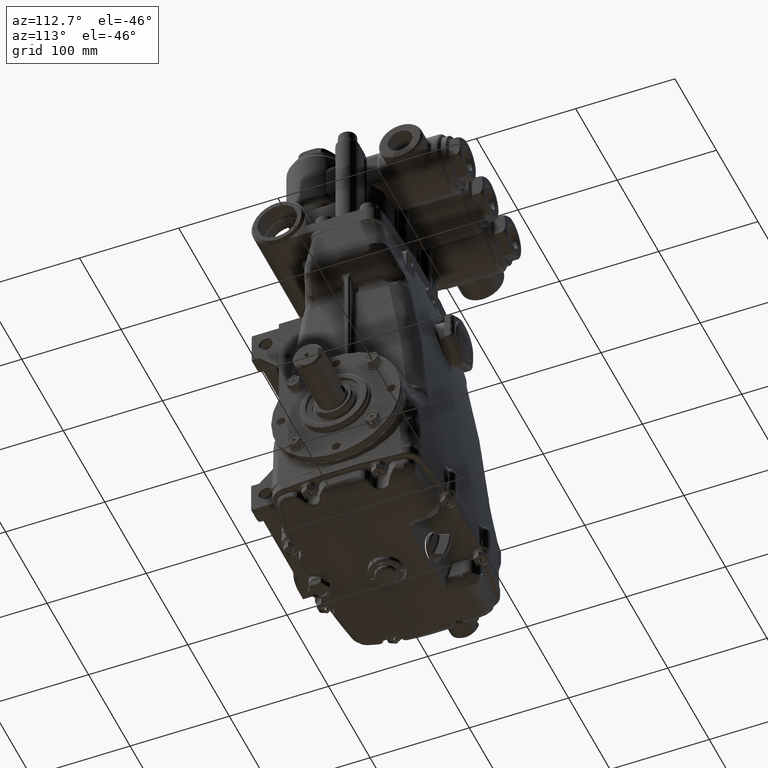
[diagram: clean part render]
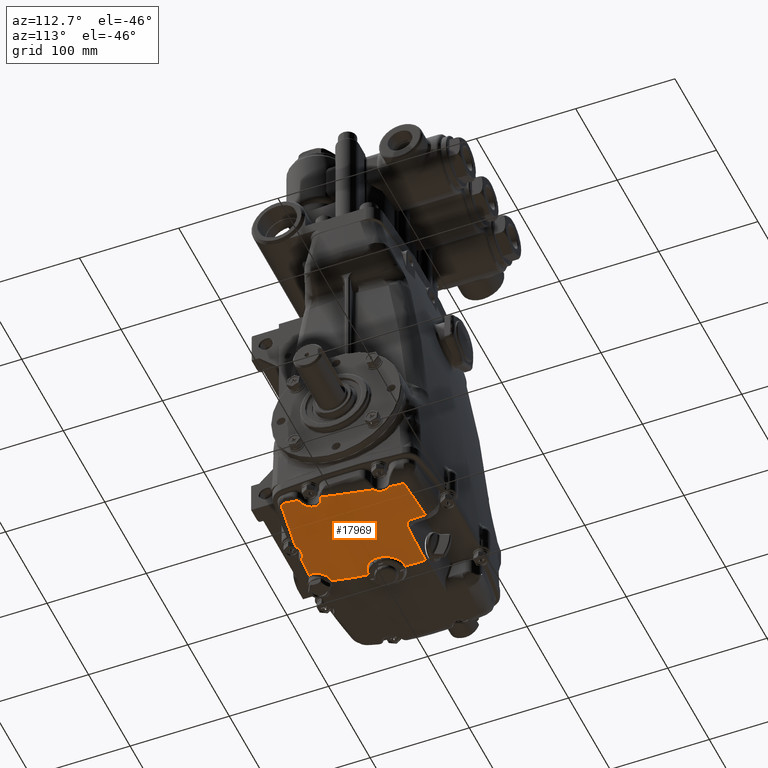
[diagram: same view with one face highlighted and labeled with its STEP entity id]
A machine part, auxiliary view. The second image highlights one B-rep face of the part: STEP entity #17969.
In plain terms, the highlighted toroidal blend (fillet) surface has major radius 100 mm and minor (blend) radius 400 mm.
Its self-contained STEP definition (entity closure, byte-faithful):
#58 = CARTESIAN_POINT ( 'NONE',  ( 1.245739980400027758, -2.855051657995907100, -3.631991507844216649 ) ) ;
#82 = EDGE_CURVE ( 'NONE', #63295, #20690, #53891, .T. ) ;
#226 = ORIENTED_EDGE ( 'NONE', *, *, #82409, .F. ) ;
#305 = CARTESIAN_POINT ( 'NONE',  ( 3.586567978287549696, 2.204579372434504414, -3.907619816998144646 ) ) ;
#919 = CARTESIAN_POINT ( 'NONE',  ( 2.003172396172104453E-16, 1.552323950496150795, -4.257337785501216665 ) ) ;
#1147 = CARTESIAN_POINT ( 'NONE',  ( 3.565604338808315621, -1.478484673195956001, -3.662868942396729111 ) ) ;
#1989 = ORIENTED_EDGE ( 'NONE', *, *, #18225, .F. ) ;
#2120 = CARTESIAN_POINT ( 'NONE',  ( 3.583763882361810094, -1.542539807167970123, -3.647216038498761304 ) ) ;
#2366 = CARTESIAN_POINT ( 'NONE',  ( 1.419107536603219089, 1.565547046440341150, -4.208037935621634418 ) ) ;
#2786 = CARTESIAN_POINT ( 'NONE',  ( 0.08835894796068850809, -2.173450601052985931, -3.847407205851667733 ) ) ;
#3397 = VERTEX_POINT ( 'NONE', #92720 ) ;
#3649 = CARTESIAN_POINT ( 'NONE',  ( 0.7333930364450117478, -3.713920644460025589E-15, -4.182122793431192420 ) ) ;
#3729 = DIRECTION ( 'NONE',  ( 0.000000000000000000, 0.000000000000000000, 1.000000000000000000 ) ) ;
#4188 = CARTESIAN_POINT ( 'NONE',  ( 3.626681482134549661, 1.140662726550395023, -3.918990675833525561 ) ) ;
#4249 = CARTESIAN_POINT ( 'NONE',  ( 0.7337424049238756574, 0.04862465115337850224, -4.186392271448601932 ) ) ;
#4735 = CARTESIAN_POINT ( 'NONE',  ( 0.4355964639879573164, 0.6136756290467074715, -4.233689838263579475 ) ) ;
#5072 = CARTESIAN_POINT ( 'NONE',  ( 3.115494169941632308, -2.681998754487130210, -3.467583127712007940 ) ) ;
#5131 = CARTESIAN_POINT ( 'NONE',  ( 0.4000620936014194773, -2.884814384941388532, -3.660086713610045450 ) ) ;
#5577 = CARTESIAN_POINT ( 'NONE',  ( 1.483325959519877557, -2.708548588730216533, -3.655441807153450906 ) ) ;
#5714 = CARTESIAN_POINT ( 'NONE',  ( 0.3317191125512596872, 0.6775665606348731940, -4.238776474263090677 ) ) ;
#5852 = CARTESIAN_POINT ( 'NONE',  ( 0.7048509219428266137, -0.1856555288772056833, -4.165563374280587539 ) ) ;
#6215 = CARTESIAN_POINT ( 'NONE',  ( 1.980190692304566902, 1.678499398813846799, -4.155740781809343254 ) ) ;
#6698 = CARTESIAN_POINT ( 'NONE',  ( 2.273859509442015536, 2.372132690393284893, -4.097843512510861430 ) ) ;
#6808 = CARTESIAN_POINT ( 'NONE',  ( 0.6152860796153137857, -0.3765557451413883983, -4.148033955126424921 ) ) ;
#7991 = TOROIDAL_SURFACE ( 'NONE', #76998, 3.937007874015747255, 15.74803149606299257 ) ;
#8064 = ORIENTED_EDGE ( 'NONE', *, *, #27104, .F. ) ;
#8820 = VERTEX_POINT ( 'NONE', #9002 ) ;
#8983 = CARTESIAN_POINT ( 'NONE',  ( 3.603287535501370709, -1.196200514404077708, -3.706475229060999244 ) ) ;
#9002 = CARTESIAN_POINT ( 'NONE',  ( 1.484937481530693995E-28, 0.7562672354312620637, -4.244969138634028916 ) ) ;
#9324 = AXIS2_PLACEMENT_3D ( 'NONE', #71025, #94086, #3729 ) ;
#9974 = CARTESIAN_POINT ( 'NONE',  ( 3.559363957123341748, -1.345812678849388044, -3.688516504562397103 ) ) ;
#10002 = VERTEX_POINT ( 'NONE', #95521 ) ;
#10189 = CARTESIAN_POINT ( 'NONE',  ( 2.008673690766307640, 1.931285806549176032, -4.148006241757110857 ) ) ;
#10445 = CARTESIAN_POINT ( 'NONE',  ( 3.634378383212812480, -1.640035068897425674, -3.618441625795617345 ) ) ;
#10976 = CARTESIAN_POINT ( 'NONE',  ( 1.568112543660154401, -2.697609937580156547, -3.651622421538722740 ) ) ;
#11561 = DIRECTION ( 'NONE',  ( 0.000000000000000000, -1.000000000000000000, 0.000000000000000000 ) ) ;
#11562 = CARTESIAN_POINT ( 'NONE',  ( 3.646664816487408256, 1.641861633727149217, -3.915456687385084233 ) ) ;
#11936 = ORIENTED_EDGE ( 'NONE', *, *, #84684, .F. ) ;
#12066 = ORIENTED_EDGE ( 'NONE', *, *, #95650, .F. ) ;
#12095 = CARTESIAN_POINT ( 'NONE',  ( 3.621571924099792561, 1.860832538617128717, -3.915574858415211690 ) ) ;
#12112 = CARTESIAN_POINT ( 'NONE',  ( 0.4925692811619593603, 0.5671706834012724130, -4.229954282807118382 ) ) ;
#12457 = CARTESIAN_POINT ( 'NONE',  ( 1.610741714477412989, -2.698428200343477634, -3.647849478386491651 ) ) ;
#12484 = CARTESIAN_POINT ( 'NONE',  ( 0.4379969648223513978, -2.460565197906707358, -3.772899590880935516 ) ) ;
#12755 = CARTESIAN_POINT ( 'NONE',  ( 8.831981099300206732E-29, -0.7094424206646805509, -4.116319017392696011 ) ) ;
#12987 = CARTESIAN_POINT ( 'NONE',  ( 0.4377237971306701114, -2.814335734729317196, -3.679065092924926894 ) ) ;
#13098 = CARTESIAN_POINT ( 'NONE',  ( 0.4550403399699287088, 0.5988651506360019861, -4.232503482409145867 ) ) ;
#13231 = CARTESIAN_POINT ( 'NONE',  ( 0.6279044653457337422, -0.3565023860598889316, -4.149897298541354473 ) ) ;
#13502 = CARTESIAN_POINT ( 'NONE',  ( 1.876542483643144577, -2.812870495884016275, -3.592079507783254577 ) ) ;
#13582 = CARTESIAN_POINT ( 'NONE',  ( 0.5920326208318058558, 0.4591306673311352227, -4.221176041747254359 ) ) ;
#13887 = B_SPLINE_CURVE_WITH_KNOTS ( 'NONE', 3,
 ( #50771, #43388, #96402, #50281 ),
 .UNSPECIFIED., .F., .F.,
 ( 4, 4 ),
 ( 0.000000000000000000, 0.1184049980374858035 ),
 .UNSPECIFIED. ) ;
#14305 = ORIENTED_EDGE ( 'NONE', *, *, #48878, .F. ) ;
#15495 = CARTESIAN_POINT ( 'NONE',  ( 0.02474760634068609230, 0.7562672354312613976, -4.244969138634027139 ) ) ;
#16204 = B_SPLINE_CURVE_WITH_KNOTS ( 'NONE', 3,
 ( #29973, #75650, #59938, #82527 ),
 .UNSPECIFIED., .F., .F.,
 ( 4, 4 ),
 ( 6.049187461416408140E-17, 0.0003509764754748541729 ),
 .UNSPECIFIED. ) ;
#16257 = VERTEX_POINT ( 'NONE', #27518 ) ;
#16732 = CARTESIAN_POINT ( 'NONE',  ( 3.872407700373652339, -0.9735357559509230096, -3.690100359438702515 ) ) ;
#16779 = CARTESIAN_POINT ( 'NONE',  ( 3.863625718058384617, -1.809906788860893290, -3.538215173066398211 ) ) ;
#17026 = VERTEX_POINT ( 'NONE', #13502 ) ;
#17114 = CARTESIAN_POINT ( 'NONE',  ( 0.5681572246669033266, 1.553977983604128976, -4.251171031928551614 ) ) ;
#17560 = CARTESIAN_POINT ( 'NONE',  ( 0.4600057126204847302, -2.738354504905432751, -3.699399859044935734 ) ) ;
#17796 = CARTESIAN_POINT ( 'NONE',  ( 3.770567827148264328, -2.578838951199222684, -3.373077672788578951 ) ) ;
#17816 = B_SPLINE_CURVE_WITH_KNOTS ( 'NONE', 3,
 ( #42898, #57639, #79745, #87116, #56670, #78781, #35077, #5577, #19839, #65016, #50262, #10976, #49777, #12457, #85661, #27695, #40934, #18859, #87610, #20321, #70916, #63533 ),
 .UNSPECIFIED., .F., .F.,
 ( 4, 2, 2, 2, 2, 2, 2, 2, 2, 2, 4 ),
 ( 0.000000000000000000, 0.002171790190448051258, 0.004343580380896102516, 0.006515370571344154642, 0.007601265666568180271, 0.008687160761792205033, 0.009773055857016231529, 0.01085895095224025629, 0.01303074114268829367, 0.01520253133313632932, 0.01737432152358436496 ),
 .UNSPECIFIED. ) ;
#17839 = CARTESIAN_POINT ( 'NONE',  ( 3.561781319896857312, -1.456787230011171719, -3.667668395193122155 ) ) ;
#17969 = ADVANCED_FACE ( 'NONE', ( #34660 ), #7991, .T. ) ;
#18060 = CARTESIAN_POINT ( 'NONE',  ( 2.008661041545683812, 2.395021426171620060, -4.123632080681848500 ) ) ;
#18082 = EDGE_CURVE ( 'NONE', #18400, #17026, #82939, .T. ) ;
#18225 = EDGE_CURVE ( 'NONE', #17026, #80629, #22072, .T. ) ;
#18400 = VERTEX_POINT ( 'NONE', #89492 ) ;
#18491 = CARTESIAN_POINT ( 'NONE',  ( 1.245739980400027758, -2.855051657995907100, -3.631991507844216649 ) ) ;
#18618 = ORIENTED_EDGE ( 'NONE', *, *, #51666, .F. ) ;
#18772 = CARTESIAN_POINT ( 'NONE',  ( 3.809013923838506788, -2.558371276684589191, -3.370762654423174798 ) ) ;
#18830 = CARTESIAN_POINT ( 'NONE',  ( 2.187762165971132156, -2.786261965328659329, -3.566853002154207530 ) ) ;
#18859 = CARTESIAN_POINT ( 'NONE',  ( 1.747962851359756931, -2.730000400886859246, -3.627202804908173039 ) ) ;
#18949 = CARTESIAN_POINT ( 'NONE',  ( 3.629847575948220939, 1.619798204031977829, -3.918972616303384449 ) ) ;
#19435 = DIRECTION ( 'NONE',  ( 0.000000000000000000, 0.000000000000000000, -1.000000000000000000 ) ) ;
#19498 = CARTESIAN_POINT ( 'NONE',  ( 0.5618373180732132433, 0.4973528470300818682, -4.224299276946291926 ) ) ;
#19811 = CARTESIAN_POINT ( 'NONE',  ( 2.497898342742233435, -2.755055460498212927, -3.537201936879522890 ) ) ;
#19839 = CARTESIAN_POINT ( 'NONE',  ( 1.497473787614830742, -2.705531607547116302, -3.655153973710840276 ) ) ;
#19870 = CARTESIAN_POINT ( 'NONE',  ( 0.4005101008080272917, -2.387092339918871708, -3.792106912017034759 ) ) ;
#19967 = CARTESIAN_POINT ( 'NONE',  ( 3.633875990936608513, 1.751279334968094847, -3.916149617121006177 ) ) ;
#20126 = CARTESIAN_POINT ( 'NONE',  ( 0.1632070964908627630, -0.6914647128491893113, -4.118069878825973085 ) ) ;
#20321 = CARTESIAN_POINT ( 'NONE',  ( 1.822204368419263698, -2.769635333946053102, -3.609373799083536394 ) ) ;
#20354 = B_SPLINE_CURVE_WITH_KNOTS ( 'NONE', 3,
 ( #69657, #83448, #17114, #31855, #2366, #30889 ),
 .UNSPECIFIED., .F., .F.,
 ( 4, 2, 4 ),
 ( 0.04329125418444283724, 0.06493589394034193774, 0.08658053369624105211 ),
 .UNSPECIFIED. ) ;
#20469 = CARTESIAN_POINT ( 'NONE',  ( 0.7275429721425328289, 0.1218267962290368461, -4.192755238023530673 ) ) ;
#20617 = CARTESIAN_POINT ( 'NONE',  ( 0.4000620936014194773, -2.884814384941388532, -3.660086713610045450 ) ) ;
#20690 = VERTEX_POINT ( 'NONE', #58 ) ;
#20849 = CARTESIAN_POINT ( 'NONE',  ( 0.3185956466287307443, -2.290677831665465458, -3.817156890625955867 ) ) ;
#20883 = CARTESIAN_POINT ( 'NONE',  ( 3.647611407161935659, -1.658154061950620539, -3.612271883846879472 ) ) ;
#22072 = B_SPLINE_CURVE_WITH_KNOTS ( 'NONE', 3,
 ( #40896, #63504, #18830, #19811, #94935, #5072, #28146, #26203 ),
 .UNSPECIFIED., .F., .F.,
 ( 4, 2, 2, 4 ),
 ( 0.04773650512796401291, 0.05965669836104948304, 0.07157689159413496705, 0.09541727806030594894 ),
 .UNSPECIFIED. ) ;
#22353 = CARTESIAN_POINT ( 'NONE',  ( 3.931430012626015102, -1.867895298749763677, -3.511778674847698234 ) ) ;
#22791 = CARTESIAN_POINT ( 'NONE',  ( 3.691987149479054597, -1.707457738661033009, -3.593694390311593434 ) ) ;
#22874 = CARTESIAN_POINT ( 'NONE',  ( 0.04955429726530854312, 0.7550083279279999893, -4.244870735151792474 ) ) ;
#22902 = CARTESIAN_POINT ( 'NONE',  ( 3.064611472474148446, 2.281165435530092989, -3.994878408164534100 ) ) ;
#22930 = EDGE_CURVE ( 'NONE', #23899, #63295, #72949, .T. ) ;
#23763 = CARTESIAN_POINT ( 'NONE',  ( 3.872407700373652339, -0.9735357559509230096, -3.690100359438702515 ) ) ;
#23899 = VERTEX_POINT ( 'NONE', #63015 ) ;
#24671 = CARTESIAN_POINT ( 'NONE',  ( 3.886738178188245740, -2.454627830697037716, -3.381967238802731313 ) ) ;
#24695 = CARTESIAN_POINT ( 'NONE',  ( 3.720859036953444665, 1.037867726598609819, -3.899014983528266587 ) ) ;
#24715 = CARTESIAN_POINT ( 'NONE',  ( 3.714501964040828330, -1.056333570673942734, -3.708340763827934872 ) ) ;
#25114 = CARTESIAN_POINT ( 'NONE',  ( 3.823806146129085537, -1.793153042647171569, -3.549776368419175654 ) ) ;
#25154 = CARTESIAN_POINT ( 'NONE',  ( 3.868879502842162310, -2.494329789588826785, -3.375363340974605109 ) ) ;
#25414 = CARTESIAN_POINT ( 'NONE',  ( 0.4210627623333653147, -2.850939970837875759, -3.669224017197981524 ) ) ;
#26203 = CARTESIAN_POINT ( 'NONE',  ( 3.728132651066273340, -2.589356219755102551, -3.378722439390763110 ) ) ;
#26847 = ORIENTED_EDGE ( 'NONE', *, *, #34450, .F. ) ;
#27104 = EDGE_CURVE ( 'NONE', #3397, #48297, #49724, .T. ) ;
#27504 = CARTESIAN_POINT ( 'NONE',  ( 0.1859544217699561075, -0.6859052078635387018, -4.118610563163558780 ) ) ;
#27518 = CARTESIAN_POINT ( 'NONE',  ( 1.702059072287212205, 1.572153632602977247, -4.183406504010035221 ) ) ;
#27695 = CARTESIAN_POINT ( 'NONE',  ( 1.667393450367502972, -2.705358816505083031, -3.641120838932098369 ) ) ;
#27780 = CARTESIAN_POINT ( 'NONE',  ( 3.560620847076446882, 1.436730850196259235, -3.933364998822224567 ) ) ;
#28146 = CARTESIAN_POINT ( 'NONE',  ( 3.422575592899133934, -2.638662439618070898, -3.426138711723588859 ) ) ;
#28201 = CARTESIAN_POINT ( 'NONE',  ( 0.04460092797394513836, -2.167208029091822308, -3.849010079505816417 ) ) ;
#28241 = CARTESIAN_POINT ( 'NONE',  ( 3.823806146129085537, -1.793153042647171569, -3.549776368419175654 ) ) ;
#28788 = CARTESIAN_POINT ( 'NONE',  ( 3.646664816487408256, 1.641861633727149217, -3.915456687385084233 ) ) ;
#28800 = CARTESIAN_POINT ( 'NONE',  ( 0.2412942400473458149, 0.7172718552742751719, -4.241912704648060917 ) ) ;
#28826 = CARTESIAN_POINT ( 'NONE',  ( 1.890906886572283119, 1.623384772786901076, -4.165469755234848748 ) ) ;
#28934 = CARTESIAN_POINT ( 'NONE',  ( 0.4939085513583030829, -0.5190591162143017856, -4.134639758097313766 ) ) ;
#29973 = CARTESIAN_POINT ( 'NONE',  ( 1.245739980400027758, -2.855051657995907100, -3.631991507844216649 ) ) ;
#30270 = CARTESIAN_POINT ( 'NONE',  ( 3.326332494310697552, 2.245008663854715980, -3.953787052236676924 ) ) ;
#30347 = CARTESIAN_POINT ( 'NONE',  ( 1.254974850051161051, -2.845013873635469093, -3.634204289657825271 ) ) ;
#30889 = CARTESIAN_POINT ( 'NONE',  ( 1.702059072287212205, 1.572153632602977247, -4.183406504010035221 ) ) ;
#31087 = VERTEX_POINT ( 'NONE', #77829 ) ;
#31106 = CARTESIAN_POINT ( 'NONE',  ( 3.577811901941634343, -1.258506167236604467, -3.700535329728496858 ) ) ;
#31125 = CARTESIAN_POINT ( 'NONE',  ( 1.869383322616463117, -2.807057063106219719, -3.594405301457350710 ) ) ;
#31855 = CARTESIAN_POINT ( 'NONE',  ( 1.135736795874097593, 1.560590851204711749, -4.226516187002955505 ) ) ;
#32763 = CARTESIAN_POINT ( 'NONE',  ( 0.4669302591580821171, -2.698995474909019254, -3.709897107516295200 ) ) ;
#33145 = VERTEX_POINT ( 'NONE', #61076 ) ;
#33174 = ORIENTED_EDGE ( 'NONE', *, *, #66213, .F. ) ;
#33231 = CARTESIAN_POINT ( 'NONE',  ( 0.6823706657701417155, -2.879987158023668670, -3.655534384585330532 ) ) ;
#34450 = EDGE_CURVE ( 'NONE', #90706, #45231, #47485, .T. ) ;
#34660 = FACE_OUTER_BOUND ( 'NONE', #50115, .T. ) ;
#34710 = CARTESIAN_POINT ( 'NONE',  ( 3.594173914756466193, 2.126482030281483304, -3.910278122376084742 ) ) ;
#35077 = CARTESIAN_POINT ( 'NONE',  ( 1.441755554501353176, -2.719601105694878118, -3.655645177967421500 ) ) ;
#35154 = CARTESIAN_POINT ( 'NONE',  ( 3.699026507002487030, 1.055336998217146105, -3.903626357330575836 ) ) ;
#35358 = CARTESIAN_POINT ( 'NONE',  ( 0.4199811270316639034, -0.5779753334101679352, -4.129022176410383160 ) ) ;
#35687 = CARTESIAN_POINT ( 'NONE',  ( 0.3953793295701341637, 0.6412677182113569740, -4.235893192269966079 ) ) ;
#35712 = CARTESIAN_POINT ( 'NONE',  ( 1.962851284236456051, 1.666562271230724201, -4.157698992238735514 ) ) ;
#36600 = CARTESIAN_POINT ( 'NONE',  ( 3.900674149539015367, -1.835217963458702473, -3.525240212989143807 ) ) ;
#36632 = CARTESIAN_POINT ( 'NONE',  ( 3.586567978287549696, 2.204579372434504414, -3.907619816998144646 ) ) ;
#36779 = CARTESIAN_POINT ( 'NONE',  ( 0.7326446444890953869, -0.02335393701120306101, -4.180066603431411565 ) ) ;
#37592 = CARTESIAN_POINT ( 'NONE',  ( 0.09858804508712384895, 0.7500397513758898516, -4.244482005487065557 ) ) ;
#38944 = CARTESIAN_POINT ( 'NONE',  ( 3.611139618381015381, -1.602517365950183903, -3.630323230228168274 ) ) ;
#39443 = CARTESIAN_POINT ( 'NONE',  ( 3.666267401420375105, -1.103058151253732078, -3.710059555641522344 ) ) ;
#39557 = CARTESIAN_POINT ( 'NONE',  ( 1.730522399616355012, 1.572818217879113023, -4.180928721025569672 ) ) ;
#39880 = CARTESIAN_POINT ( 'NONE',  ( 3.826861050663636021, -2.544671697334583982, -3.370761410914473455 ) ) ;
#39928 = CARTESIAN_POINT ( 'NONE',  ( 3.571462184105320237, -1.280234262307147652, -3.697921987226300722 ) ) ;
#39981 = EDGE_CURVE ( 'NONE', #48973, #78372, #63033, .T. ) ;
#40263 = CARTESIAN_POINT ( 'NONE',  ( 3.922866597083941365, -0.9542416793586864232, -3.682798854708527081 ) ) ;
#40896 = CARTESIAN_POINT ( 'NONE',  ( 1.876542483643144577, -2.812870495884016275, -3.592079507783254577 ) ) ;
#40934 = CARTESIAN_POINT ( 'NONE',  ( 1.694780199666231502, -2.711852277465110816, -3.636945158084419205 ) ) ;
#41021 = CARTESIAN_POINT ( 'NONE',  ( 3.589949382978762316, 1.545143591340030431, -3.927302923417596681 ) ) ;
#41623 = CARTESIAN_POINT ( 'NONE',  ( 0.000000000000000000, 1.398871258882495416, 11.48994605243186840 ) ) ;
#42038 = CARTESIAN_POINT ( 'NONE',  ( 3.873885938955531127, -0.2571276511865417946, -3.788110459876599556 ) ) ;
#42084 = CARTESIAN_POINT ( 'NONE',  ( 8.831981099300206732E-29, -0.7094424206646805509, -4.116319017392696011 ) ) ;
#42431 = CARTESIAN_POINT ( 'NONE',  ( 0.2680847069381476211, -2.250353468461625539, -3.827589196319168163 ) ) ;
#42704 = CARTESIAN_POINT ( 'NONE',  ( 0.3610197065516833614, -0.6163141624680221753, -4.125345315309562721 ) ) ;
#42898 = CARTESIAN_POINT ( 'NONE',  ( 1.254974850051161051, -2.845013873635469093, -3.634204289657825271 ) ) ;
#43037 = CARTESIAN_POINT ( 'NONE',  ( 0.3746060256561361546, 0.6540492600090591635, -4.236910178975861641 ) ) ;
#43172 = CARTESIAN_POINT ( 'NONE',  ( 0.4390567035582108590, -0.5642349978772231989, -4.130336662271744785 ) ) ;
#43388 = CARTESIAN_POINT ( 'NONE',  ( 3.912881244489314625, -2.231596983742285545, -3.433420632372893966 ) ) ;
#44123 = CARTESIAN_POINT ( 'NONE',  ( 0.5749609795178111105, -0.4343037677226513349, -4.142646523513473511 ) ) ;
#45231 = VERTEX_POINT ( 'NONE', #63958 ) ;
#45458 = CARTESIAN_POINT ( 'NONE',  ( 2.003069288343956700, 1.694939550856162658, -4.153111690900376907 ) ) ;
#45483 = B_SPLINE_CURVE_WITH_KNOTS ( 'NONE', 3,
 ( #28788, #19967, #12095, #88231, #34710, #36632 ),
 .UNSPECIFIED., .F., .F.,
 ( 4, 2, 4 ),
 ( 0.8787052562053232485, 0.9496522024094325998, 1.000000000000000000 ),
 .UNSPECIFIED. ) ;
#45943 = CARTESIAN_POINT ( 'NONE',  ( 1.702059072287212205, 1.572153632602977247, -4.183406504010035221 ) ) ;
#46175 = ORIENTED_EDGE ( 'NONE', *, *, #96142, .F. ) ;
#46800 = CARTESIAN_POINT ( 'NONE',  ( 1.876542483643144577, -2.812870495884016275, -3.592079507783254577 ) ) ;
#47309 = CARTESIAN_POINT ( 'NONE',  ( 1.865905063327786717, -2.804038209525553160, -3.595586502535783158 ) ) ;
#47484 = CARTESIAN_POINT ( 'NONE',  ( 0.2857441941307072852, -2.263187779526286469, -3.824272266622115168 ) ) ;
#47485 = B_SPLINE_CURVE_WITH_KNOTS ( 'NONE', 3,
 ( #22353, #36600, #16779, #25114 ),
 .UNSPECIFIED., .F., .F.,
 ( 4, 4 ),
 ( 0.000000000000000000, 1.000000000000000000 ),
 .UNSPECIFIED. ) ;
#47763 = CARTESIAN_POINT ( 'NONE',  ( 3.557432984014971655, -1.412825169511775281, -3.676659020318942428 ) ) ;
#48192 = ORIENTED_EDGE ( 'NONE', *, *, #71325, .F. ) ;
#48297 = VERTEX_POINT ( 'NONE', #24695 ) ;
#48377 = CARTESIAN_POINT ( 'NONE',  ( 3.571077422130410461, 1.269157955343095612, -3.930922902736151414 ) ) ;
#48878 = EDGE_CURVE ( 'NONE', #10002, #81525, #65241, .T. ) ;
#48885 = CARTESIAN_POINT ( 'NONE',  ( 3.642605987153234359, 1.117742113554474503, -3.915597871831394183 ) ) ;
#48934 = CARTESIAN_POINT ( 'NONE',  ( 3.905435254941755918, -0.6056825736036506314, -3.740149926762978527 ) ) ;
#48973 = VERTEX_POINT ( 'NONE', #42084 ) ;
#49537 = ORIENTED_EDGE ( 'NONE', *, *, #18082, .F. ) ;
#49724 = B_SPLINE_CURVE_WITH_KNOTS ( 'NONE', 3,
 ( #86277, #48934, #42038, #64153, #94112, #65156 ),
 .UNSPECIFIED., .F., .F.,
 ( 4, 2, 4 ),
 ( 0.3162942192141539599, 0.5426584013768196435, 0.7479460576468662802 ),
 .UNSPECIFIED. ) ;
#49777 = CARTESIAN_POINT ( 'NONE',  ( 1.582301698735254281, -2.697416655977635358, -3.650503169443640061 ) ) ;
#49804 = CARTESIAN_POINT ( 'NONE',  ( 0.3763480170513766043, -2.351988000582735161, -3.801246797390521515 ) ) ;
#49972 = DIRECTION ( 'NONE',  ( 0.000000000000000000, 0.000000000000000000, 1.000000000000000000 ) ) ;
#50115 = EDGE_LOOP ( 'NONE', ( #73550, #84165, #69190, #14305, #68230, #81795, #46175, #8064, #18618, #11936, #26847, #226, #83195, #1989, #49537, #48192, #33174, #70421, #79278, #12066, #90374, #72758 ) ) ;
#50262 = CARTESIAN_POINT ( 'NONE',  ( 1.539795395510776155, -2.699382030295283119, -3.653449653502197858 ) ) ;
#50281 = CARTESIAN_POINT ( 'NONE',  ( 3.931430012626015102, -1.867895298749763677, -3.511778674847698234 ) ) ;
#50409 = CARTESIAN_POINT ( 'NONE',  ( 0.6759284113060287646, 0.3096682920987798293, -4.208761326364785837 ) ) ;
#50495 = EDGE_CURVE ( 'NONE', #78372, #8820, #83642, .T. ) ;
#50771 = CARTESIAN_POINT ( 'NONE',  ( 3.894353775054843592, -2.412844718384135501, -3.391082440071080839 ) ) ;
#51031 = B_SPLINE_CURVE_WITH_KNOTS ( 'NONE', 3,
 ( #84594, #91963, #17796, #18772, #39880, #77708, #25154, #24671, #70316, #62957 ),
 .UNSPECIFIED., .F., .F.,
 ( 4, 2, 2, 2, 4 ),
 ( 0.000000000000000000, 0.2500000000000000000, 0.5000000000000000000, 0.7500000000000000000, 1.000000000000000000 ),
 .UNSPECIFIED. ) ;
#51666 = EDGE_CURVE ( 'NONE', #33145, #3397, #88178, .T. ) ;
#52844 = CARTESIAN_POINT ( 'NONE',  ( 2.008675996339654990, 1.699112209371619331, -4.152456506698113614 ) ) ;
#53213 = CARTESIAN_POINT ( 'NONE',  ( 3.732325436642770722, -1.042304915510469554, -3.707121402107437902 ) ) ;
#53296 = CARTESIAN_POINT ( 'NONE',  ( 0.1945908541524337121, 0.7317113525162086685, -4.243045852375299631 ) ) ;
#53891 = B_SPLINE_CURVE_WITH_KNOTS ( 'NONE', 3,
 ( #57277, #33231, #56799, #18491 ),
 .UNSPECIFIED., .F., .F.,
 ( 4, 4 ),
 ( 0.01015079917255678164, 0.03165487600483053027 ),
 .UNSPECIFIED. ) ;
#54176 = CARTESIAN_POINT ( 'NONE',  ( 3.625410740915765206, -1.157264153893474923, -3.708865502917152224 ) ) ;
#54864 = CARTESIAN_POINT ( 'NONE',  ( 0.4691532152393825261, -2.678891790807973461, -3.715248119059962661 ) ) ;
#55221 = CARTESIAN_POINT ( 'NONE',  ( 3.646664816487408256, 1.641861633727149217, -3.915456687385084233 ) ) ;
#56255 = CARTESIAN_POINT ( 'NONE',  ( 3.614920384017087152, 1.595792924870006013, -3.922092998972779299 ) ) ;
#56670 = CARTESIAN_POINT ( 'NONE',  ( 1.364082880242045270, -2.754656268253381945, -3.651789098153537250 ) ) ;
#56702 = CARTESIAN_POINT ( 'NONE',  ( 0.4516244889267219675, -2.499064403612837992, -3.762799165117463929 ) ) ;
#56760 = CARTESIAN_POINT ( 'NONE',  ( 3.678672419085700973, 1.075142952580368405, -3.907938068769369444 ) ) ;
#56799 = CARTESIAN_POINT ( 'NONE',  ( 0.9642629750196214378, -2.870057643695232752, -3.646170577708936378 ) ) ;
#57188 = CARTESIAN_POINT ( 'NONE',  ( 0.3338650875553040298, -2.305354086540737146, -3.813353215092893933 ) ) ;
#57277 = CARTESIAN_POINT ( 'NONE',  ( 0.4000620936014194773, -2.884814384941388532, -3.660086713610045450 ) ) ;
#57450 = CARTESIAN_POINT ( 'NONE',  ( 0.04758675287834893824, -0.7094424206646797737, -4.116319017392694235 ) ) ;
#57639 = CARTESIAN_POINT ( 'NONE',  ( 1.273772870566434845, -2.823676290073320327, -3.638950668788394793 ) ) ;
#57719 = CARTESIAN_POINT ( 'NONE',  ( 3.580080407361442063, 1.518979941176582971, -3.929356037068856722 ) ) ;
#57917 = CARTESIAN_POINT ( 'NONE',  ( 0.2310270170215033836, -0.6725634065777841286, -4.119906007044968455 ) ) ;
#58190 = CARTESIAN_POINT ( 'NONE',  ( 3.742521807436133496, -1.750947928254256603, -3.574878745290116733 ) ) ;
#58765 = CARTESIAN_POINT ( 'NONE',  ( 1.839702383721283807, 1.600343899877532339, -4.170657121996544703 ) ) ;
#58874 = CARTESIAN_POINT ( 'NONE',  ( 0.5446254467264209920, -0.4699365227754325747, -4.139292738592976306 ) ) ;
#59700 = CARTESIAN_POINT ( 'NONE',  ( 0.1228065529224488112, 0.7463428340518623028, -4.244192674345525162 ) ) ;
#59938 = CARTESIAN_POINT ( 'NONE',  ( 1.251971637957772110, -2.848422811770495944, -3.633445997943378636 ) ) ;
#61067 = CARTESIAN_POINT ( 'NONE',  ( 3.593763790893985455, -1.216434988306102305, -3.704813475299584269 ) ) ;
#61076 = CARTESIAN_POINT ( 'NONE',  ( 3.872407700373652339, -0.9735357559509230096, -3.690100359438702515 ) ) ;
#61628 = VERTEX_POINT ( 'NONE', #30347 ) ;
#62031 = CARTESIAN_POINT ( 'NONE',  ( 3.829039882577232046, -0.9859898410478356023, -3.696948689675354505 ) ) ;
#62700 = CARTESIAN_POINT ( 'NONE',  ( 0.1735383218888761903, -2.198103771606811918, -3.841065308062286743 ) ) ;
#62736 = CARTESIAN_POINT ( 'NONE',  ( 2.008675996339654990, 1.699112209371619331, -4.152456506698113614 ) ) ;
#62957 = CARTESIAN_POINT ( 'NONE',  ( 3.894353775054843592, -2.412844718384135501, -3.391082440071080839 ) ) ;
#63015 = CARTESIAN_POINT ( 'NONE',  ( 0.000000000000000000, -2.167208969044768896, -3.849009838011859141 ) ) ;
#63033 = B_SPLINE_CURVE_WITH_KNOTS ( 'NONE', 3,
 ( #12755, #57450, #66273, #20126, #27504, #57917, #87415, #96185, #42704, #35358, #43172, #73162, #28934, #58874, #44123, #6808, #13231, #94766, #73637, #81969, #5852, #66730, #72678, #64825, #36779, #95250 ),
 .UNSPECIFIED., .F., .F.,
 ( 4, 2, 2, 2, 2, 2, 2, 2, 2, 2, 2, 2, 4 ),
 ( 0.05809600142598594225, 0.06165180410821754359, 0.06342970544933335120, 0.06520760679044915187, 0.06876340947268075321, 0.07054131081379655388, 0.07231921215491235455, 0.07587501483714395589, 0.07765291617825975656, 0.07943081751937555723, 0.08298662020160715858, 0.08476452154272295925, 0.08654242288383875992 ),
 .UNSPECIFIED. ) ;
#63295 = VERTEX_POINT ( 'NONE', #20617 ) ;
#63504 = CARTESIAN_POINT ( 'NONE',  ( 2.032226649174575517, -2.800345578350611930, -3.580211935989142447 ) ) ;
#63533 = CARTESIAN_POINT ( 'NONE',  ( 1.865905063327786717, -2.804038209525553160, -3.595586502535783158 ) ) ;
#63619 = CARTESIAN_POINT ( 'NONE',  ( 3.565412905318730896, 1.464936887634122886, -3.932387972768816020 ) ) ;
#63788 = EDGE_CURVE ( 'NONE', #31087, #10002, #69263, .T. ) ;
#63829 = EDGE_CURVE ( 'NONE', #81525, #16257, #79895, .T. ) ;
#63958 = CARTESIAN_POINT ( 'NONE',  ( 3.823806146129085537, -1.793153042647171569, -3.549776368419175654 ) ) ;
#64102 = CARTESIAN_POINT ( 'NONE',  ( 3.556640893403860471, 1.380665688956335790, -3.934132113404736231 ) ) ;
#64153 = CARTESIAN_POINT ( 'NONE',  ( 3.800890650622665845, 0.4067580574768943635, -3.859066267428227448 ) ) ;
#64163 = CARTESIAN_POINT ( 'NONE',  ( 0.7151862258133696582, 0.1945437768856425054, -4.199018011514437987 ) ) ;
#64825 = CARTESIAN_POINT ( 'NONE',  ( 0.7307802189789865954, -0.04668326447415687558, -4.178001805595949136 ) ) ;
#65016 = CARTESIAN_POINT ( 'NONE',  ( 1.525667400830993614, -2.700960804786702862, -3.654157644413241979 ) ) ;
#65103 = CARTESIAN_POINT ( 'NONE',  ( 3.564936251651781074, 1.296662415310359417, -3.932260739193077281 ) ) ;
#65156 = CARTESIAN_POINT ( 'NONE',  ( 3.720859036953444665, 1.037867726598609819, -3.899014983528266587 ) ) ;
#65241 = B_SPLINE_CURVE_WITH_KNOTS ( 'NONE', 3,
 ( #18060, #93179, #10189, #62736 ),
 .UNSPECIFIED., .F., .F.,
 ( 4, 4 ),
 ( 4.304351991299643960E-16, 0.01769121847157051342 ),
 .UNSPECIFIED. ) ;
#65636 = CARTESIAN_POINT ( 'NONE',  ( 0.7022334094381301739, 0.2414883858161975261, -4.203014988974368649 ) ) ;
#66127 = CARTESIAN_POINT ( 'NONE',  ( 0.6660055525450880864, 0.3320193020997835309, -4.210634995971126671 ) ) ;
#66161 = CARTESIAN_POINT ( 'NONE',  ( 1.915449977705430795, 1.636783942038885886, -4.162888247674937148 ) ) ;
#66213 = EDGE_CURVE ( 'NONE', #20690, #61628, #16204, .T. ) ;
#66273 = CARTESIAN_POINT ( 'NONE',  ( 0.09434154108899413249, -0.7048593022778648631, -4.116766289548055902 ) ) ;
#66730 = CARTESIAN_POINT ( 'NONE',  ( 0.7206146750372552923, -0.1166968965644104850, -4.171761959103687190 ) ) ;
#67102 = CARTESIAN_POINT ( 'NONE',  ( 1.997352902426142940, 1.690748888302129327, -4.153774301534654434 ) ) ;
#67477 = CARTESIAN_POINT ( 'NONE',  ( 3.781625328149628817, -1.775405822286814539, -3.562023126804215067 ) ) ;
#68230 = ORIENTED_EDGE ( 'NONE', *, *, #63788, .F. ) ;
#68917 = CARTESIAN_POINT ( 'NONE',  ( 3.601026399760724139, -1.583024536450899244, -3.636075443996183765 ) ) ;
#69161 = EDGE_CURVE ( 'NONE', #95357, #16257, #20354, .T. ) ;
#69190 = ORIENTED_EDGE ( 'NONE', *, *, #63829, .F. ) ;
#69263 = B_SPLINE_CURVE_WITH_KNOTS ( 'NONE', 3,
 ( #305, #30270, #22902, #81360, #6698, #80895 ),
 .UNSPECIFIED., .F., .F.,
 ( 4, 2, 4 ),
 ( 0.01283934888689720714, 0.03321189596127591820, 0.05358444303565463446 ),
 .UNSPECIFIED. ) ;
#69417 = CARTESIAN_POINT ( 'NONE',  ( 3.576575923646594379, -1.521360761792347915, -3.652647049577929739 ) ) ;
#69657 = CARTESIAN_POINT ( 'NONE',  ( 2.003172396172104453E-16, 1.552323950496150795, -4.257337785501216665 ) ) ;
#70087 = CARTESIAN_POINT ( 'NONE',  ( 0.4687358429917098390, -2.579050630521995569, -3.741725147284316932 ) ) ;
#70316 = CARTESIAN_POINT ( 'NONE',  ( 3.892198521083986673, -2.433928812051070700, -3.386157344515060785 ) ) ;
#70421 = ORIENTED_EDGE ( 'NONE', *, *, #82, .F. ) ;
#70916 = CARTESIAN_POINT ( 'NONE',  ( 1.844824157437632950, -2.785741652843495064, -3.602745482561447332 ) ) ;
#71025 = CARTESIAN_POINT ( 'NONE',  ( 0.000000000000000000, 1.398871258882495416, 11.48994605243186840 ) ) ;
#71325 = EDGE_CURVE ( 'NONE', #61628, #18400, #17816, .T. ) ;
#71657 = CARTESIAN_POINT ( 'NONE',  ( 2.008675996339654990, 1.699112209371619331, -4.152456506698113614 ) ) ;
#72369 = AXIS2_PLACEMENT_3D ( 'NONE', #41623, #95171, #49972 ) ;
#72423 = CARTESIAN_POINT ( 'NONE',  ( 0.4719141497785583339, -2.618991682242088448, -3.731159005671315310 ) ) ;
#72480 = CARTESIAN_POINT ( 'NONE',  ( 3.720859036953444665, 1.037867726598609819, -3.899014983528266587 ) ) ;
#72678 = CARTESIAN_POINT ( 'NONE',  ( 0.7247818437609885311, -0.09329191370342336531, -4.173855152957791859 ) ) ;
#72758 = ORIENTED_EDGE ( 'NONE', *, *, #50495, .T. ) ;
#72949 = B_SPLINE_CURVE_WITH_KNOTS ( 'NONE', 3,
 ( #87636, #28201, #2786, #62700, #92673, #42431, #47484, #20849, #57188, #49804, #19870, #12484, #56702, #70087, #72423, #54864, #32763, #17560, #79774, #12987, #25414, #5131 ),
 .UNSPECIFIED., .F., .F.,
 ( 4, 2, 2, 2, 2, 2, 2, 2, 2, 2, 4 ),
 ( 0.000000000000000000, 0.1249999999999998751, 0.2499999999999999167, 0.3124999999999999445, 0.3749999999999999445, 0.5000000000000000000, 0.6250000000000000000, 0.7499999999999998890, 0.8124999999999998890, 0.8750000000000000000, 1.000000000000000000 ),
 .UNSPECIFIED. ) ;
#73162 = CARTESIAN_POINT ( 'NONE',  ( 0.4760230791557703567, -0.5347855343700947950, -4.133144669818061168 ) ) ;
#73501 = CARTESIAN_POINT ( 'NONE',  ( 0.3095555760775755005, 0.6883235693260588706, -4.239627456504150516 ) ) ;
#73550 = ORIENTED_EDGE ( 'NONE', *, *, #85798, .F. ) ;
#73637 = CARTESIAN_POINT ( 'NONE',  ( 0.6616500116575853019, -0.2942615303404713112, -4.155645656034011814 ) ) ;
#74595 = B_SPLINE_CURVE_WITH_KNOTS ( 'NONE', 3,
 ( #28241, #67477, #58190, #22791, #88171, #20883, #10445, #38944, #68917, #2120, #69417, #1147, #17839, #47763, #76304, #9974, #92003, #39928, #31106, #61067, #8983, #54176, #91026, #39443, #84150, #24715, #53213, #76782, #62031, #23763 ),
 .UNSPECIFIED., .F., .F.,
 ( 4, 2, 2, 2, 2, 2, 2, 2, 2, 2, 2, 2, 2, 2, 4 ),
 ( 0.000000000000000000, 0.1250000000000000833, 0.1874999999999999722, 0.2500000000000000000, 0.3125000000000000555, 0.3750000000000000000, 0.4374999999999999445, 0.5000000000000000000, 0.5625000000000000000, 0.6250000000000000000, 0.6875000000000000000, 0.7500000000000000000, 0.8125000000000000000, 0.8749999999999998890, 1.000000000000000000 ),
 .UNSPECIFIED. ) ;
#75463 = CARTESIAN_POINT ( 'NONE',  ( 1.985933068909048860, 1.682544462914409511, -4.155086548889387110 ) ) ;
#75541 = EDGE_CURVE ( 'NONE', #82009, #31087, #45483, .T. ) ;
#75650 = CARTESIAN_POINT ( 'NONE',  ( 1.248892005232679070, -2.851770421669240108, -3.632708010484440919 ) ) ;
#76304 = CARTESIAN_POINT ( 'NONE',  ( 3.556923272328574193, -1.390369355138794560, -3.680881840356827084 ) ) ;
#76324 = CARTESIAN_POINT ( 'NONE',  ( 1.872930650244136963, -2.810002607033998956, -3.593235740307789250 ) ) ;
#76653 = CARTESIAN_POINT ( 'NONE',  ( 3.889777034679265721, -0.9685477445465717761, -3.687357520554647827 ) ) ;
#76782 = CARTESIAN_POINT ( 'NONE',  ( 3.788616397684259951, -1.004732954730170214, -3.702061152475173422 ) ) ;
#76892 = CARTESIAN_POINT ( 'NONE',  ( 1.812819203981733018, 1.590664432579984133, -4.173283024214539338 ) ) ;
#76998 = AXIS2_PLACEMENT_3D ( 'NONE', #79826, #11561, #19435 ) ;
#77708 = CARTESIAN_POINT ( 'NONE',  ( 3.856587485639490165, -2.512825882768874752, -3.373057689859858765 ) ) ;
#77829 = CARTESIAN_POINT ( 'NONE',  ( 3.586567978287549696, 2.204579372434504414, -3.907619816998144646 ) ) ;
#78372 = VERTEX_POINT ( 'NONE', #3649 ) ;
#78781 = CARTESIAN_POINT ( 'NONE',  ( 1.415146399910848896, -2.729585237976971168, -3.654921214786273964 ) ) ;
#79278 = ORIENTED_EDGE ( 'NONE', *, *, #22930, .F. ) ;
#79344 = CARTESIAN_POINT ( 'NONE',  ( 3.599139747410468715, 1.189927783869327627, -3.924876805475173924 ) ) ;
#79406 = CARTESIAN_POINT ( 'NONE',  ( 0.7304387299562642433, 0.09732984003821913699, -4.190633746556748918 ) ) ;
#79745 = CARTESIAN_POINT ( 'NONE',  ( 1.294437020861755938, -2.804397625306670250, -3.642922082778243364 ) ) ;
#79774 = CARTESIAN_POINT ( 'NONE',  ( 0.4553247931715777019, -2.757633980935198181, -3.694247398463087251 ) ) ;
#79793 = CARTESIAN_POINT ( 'NONE',  ( 3.894353775054843592, -2.412844718384135501, -3.391082440071080839 ) ) ;
#79826 = CARTESIAN_POINT ( 'NONE',  ( 0.000000000000000000, 1.398871258882495416, 15.42695392644761476 ) ) ;
#79895 = B_SPLINE_CURVE_WITH_KNOTS ( 'NONE', 3,
 ( #52844, #45458, #67102, #75463, #6215, #35712, #96076, #66161, #28826, #58765, #76892, #92114, #39557, #45943 ),
 .UNSPECIFIED., .F., .F.,
 ( 4, 2, 2, 2, 2, 2, 4 ),
 ( -1.811864361505389329E-05, 0.0005167788700578837763, 0.001051676383730821293, 0.002121471411076713675, 0.004261061465768488030, 0.006400651520460261951, 0.008540241575152034137 ),
 .UNSPECIFIED. ) ;
#80391 = CARTESIAN_POINT ( 'NONE',  ( 0.5106995902058439896, 0.5502211396104967900, -4.228586066003015453 ) ) ;
#80629 = VERTEX_POINT ( 'NONE', #82623 ) ;
#80867 = CARTESIAN_POINT ( 'NONE',  ( 0.7341717137746136546, 0.02429900690912721595, -4.184262191811313869 ) ) ;
#80895 = CARTESIAN_POINT ( 'NONE',  ( 2.008661041545683812, 2.395021426171620060, -4.123632080681848500 ) ) ;
#81360 = CARTESIAN_POINT ( 'NONE',  ( 2.538175973886774628, 2.344752768743589399, -4.066935304130395501 ) ) ;
#81525 = VERTEX_POINT ( 'NONE', #71657 ) ;
#81795 = ORIENTED_EDGE ( 'NONE', *, *, #75541, .F. ) ;
#81969 = CARTESIAN_POINT ( 'NONE',  ( 0.6900753940086401528, -0.2300336006893105856, -4.161532421230499601 ) ) ;
#82009 = VERTEX_POINT ( 'NONE', #55221 ) ;
#82409 = EDGE_CURVE ( 'NONE', #83524, #90706, #13887, .T. ) ;
#82527 = CARTESIAN_POINT ( 'NONE',  ( 1.254974850051161051, -2.845013873635469093, -3.634204289657825271 ) ) ;
#82623 = CARTESIAN_POINT ( 'NONE',  ( 3.728132651066273340, -2.589356219755102551, -3.378722439390763110 ) ) ;
#82939 = B_SPLINE_CURVE_WITH_KNOTS ( 'NONE', 3,
 ( #47309, #31125, #76324, #46800 ),
 .UNSPECIFIED., .F., .F.,
 ( 4, 4 ),
 ( 0.000000000000000000, 0.0003623067658960041262 ),
 .UNSPECIFIED. ) ;
#83195 = ORIENTED_EDGE ( 'NONE', *, *, #91458, .F. ) ;
#83269 = CARTESIAN_POINT ( 'NONE',  ( 1.484937481530693995E-28, 0.7562672354312620637, -4.244969138634028916 ) ) ;
#83291 = B_SPLINE_CURVE_WITH_KNOTS ( 'NONE', 3,
 ( #72480, #35154, #56760, #48885, #4188, #79344, #86223, #85739, #48377, #65103, #93570, #95048, #64102, #27780, #63619, #57719, #41021, #56255, #18949, #11562 ),
 .UNSPECIFIED., .F., .F.,
 ( 4, 2, 2, 2, 2, 2, 2, 2, 2, 4 ),
 ( 0.000000000000000000, 0.1250002906638771061, 0.2500005813277542122, 0.3750008719916312905, 0.4375010173235698296, 0.5000011626555084243, 0.6250014533193855026, 0.7500017439832625810, 0.8750020346471396593, 1.000000000000000000 ),
 .UNSPECIFIED. ) ;
#83448 = CARTESIAN_POINT ( 'NONE',  ( 0.2840984342002980667, 1.552323950496150351, -4.257337785501216665 ) ) ;
#83524 = VERTEX_POINT ( 'NONE', #79793 ) ;
#83541 = CARTESIAN_POINT ( 'NONE',  ( 3.906558496962277971, -0.9621253536690033137, -3.684930263599442313 ) ) ;
#83642 = B_SPLINE_CURVE_WITH_KNOTS ( 'NONE', 3,
 ( #87749, #80867, #4249, #79406, #20469, #64163, #65636, #50409, #66127, #96054, #94122, #13582, #19498, #80391, #12112, #13098, #4735, #35687, #43037, #5714, #73501, #28800, #53296, #59700, #37592, #22874, #15495, #83269 ),
 .UNSPECIFIED., .F., .F.,
 ( 4, 2, 2, 2, 2, 2, 2, 2, 2, 2, 2, 2, 2, 4 ),
 ( 0.08654242288383875992, 0.08839227102510972822, 0.09024211916638069653, 0.09394181544892263314, 0.09579166359019360144, 0.09764151173146456975, 0.1013412080140065064, 0.1031910561552774885, 0.1050409042965484568, 0.1068907524378194251, 0.1087406005790903796, 0.1124402968616323162, 0.1142901450029032845, 0.1161399931441742528 ),
 .UNSPECIFIED. ) ;
#84150 = CARTESIAN_POINT ( 'NONE',  ( 3.681545678314765535, -1.086663366947252740, -3.709802982522944603 ) ) ;
#84165 = ORIENTED_EDGE ( 'NONE', *, *, #69161, .T. ) ;
#84594 = CARTESIAN_POINT ( 'NONE',  ( 3.728132651066273340, -2.589356219755102551, -3.378722439390763110 ) ) ;
#84626 = CARTESIAN_POINT ( 'NONE',  ( 3.931430012626015102, -1.867895298749763677, -3.511778674847698234 ) ) ;
#84684 = EDGE_CURVE ( 'NONE', #45231, #33145, #74595, .T. ) ;
#85661 = CARTESIAN_POINT ( 'NONE',  ( 1.625072591418783352, -2.699646893033973427, -3.646304339591891264 ) ) ;
#85739 = CARTESIAN_POINT ( 'NONE',  ( 3.574794153733451996, 1.255640863953976449, -3.930117614607726129 ) ) ;
#85798 = EDGE_CURVE ( 'NONE', #95357, #8820, #97157, .T. ) ;
#86223 = CARTESIAN_POINT ( 'NONE',  ( 3.587844626081796662, 1.215763394942464215, -3.927301361374851751 ) ) ;
#86277 = CARTESIAN_POINT ( 'NONE',  ( 3.922866597083941365, -0.9542416793586864232, -3.682798854708527081 ) ) ;
#87116 = CARTESIAN_POINT ( 'NONE',  ( 1.339466257598047827, -2.769926032194784060, -3.649340496259566358 ) ) ;
#87415 = CARTESIAN_POINT ( 'NONE',  ( 0.2534404189554586018, -0.6647448425849101783, -4.120664280139194169 ) ) ;
#87610 = CARTESIAN_POINT ( 'NONE',  ( 1.773899349228732936, -2.741790388264389922, -3.621584547401897947 ) ) ;
#87636 = CARTESIAN_POINT ( 'NONE',  ( 0.000000000000000000, -2.167208969044768896, -3.849009838011859141 ) ) ;
#87749 = CARTESIAN_POINT ( 'NONE',  ( 0.7333930364450117478, -3.713920644460025589E-15, -4.182122793431192420 ) ) ;
#88171 = CARTESIAN_POINT ( 'NONE',  ( 3.676385997344915335, -1.691798379989083445, -3.599916982425717116 ) ) ;
#88178 = B_SPLINE_CURVE_WITH_KNOTS ( 'NONE', 3,
 ( #16732, #76653, #83541, #40263 ),
 .UNSPECIFIED., .F., .F.,
 ( 4, 4 ),
 ( 0.000000000000000000, 1.000000000000000000 ),
 .UNSPECIFIED. ) ;
#88231 = CARTESIAN_POINT ( 'NONE',  ( 3.601765199893677494, 2.048469511868057591, -3.912337698474081638 ) ) ;
#89492 = CARTESIAN_POINT ( 'NONE',  ( 1.865905063327786717, -2.804038209525553160, -3.595586502535783158 ) ) ;
#90374 = ORIENTED_EDGE ( 'NONE', *, *, #39981, .T. ) ;
#90706 = VERTEX_POINT ( 'NONE', #84626 ) ;
#91026 = CARTESIAN_POINT ( 'NONE',  ( 3.638136033769759248, -1.138410812132508054, -3.709594867113815475 ) ) ;
#91458 = EDGE_CURVE ( 'NONE', #80629, #83524, #51031, .T. ) ;
#91963 = CARTESIAN_POINT ( 'NONE',  ( 3.749693669493293857, -2.585877006486809293, -3.375376610743262784 ) ) ;
#92003 = CARTESIAN_POINT ( 'NONE',  ( 3.562274940606730222, -1.323796838984823809, -3.691921284895208100 ) ) ;
#92114 = CARTESIAN_POINT ( 'NONE',  ( 1.758305726548180514, 1.576970522116405871, -4.178409998767908640 ) ) ;
#92673 = CARTESIAN_POINT ( 'NONE',  ( 0.2131791482389450154, -2.215999427716019099, -3.836458375924236108 ) ) ;
#92720 = CARTESIAN_POINT ( 'NONE',  ( 3.922866597083941365, -0.9542416793586864232, -3.682798854708527081 ) ) ;
#93179 = CARTESIAN_POINT ( 'NONE',  ( 2.008668713783337445, 2.163255561837236662, -4.138398513542967727 ) ) ;
#93570 = CARTESIAN_POINT ( 'NONE',  ( 3.562510148194283577, 1.310712111598007823, -3.932793725230403936 ) ) ;
#94086 = DIRECTION ( 'NONE',  ( -1.000000000000000000, -0.000000000000000000, -0.000000000000000000 ) ) ;
#94112 = CARTESIAN_POINT ( 'NONE',  ( 3.760680358135514822, 0.7221416255093634495, -3.883983701146128009 ) ) ;
#94122 = CARTESIAN_POINT ( 'NONE',  ( 0.6315338706246939049, 0.3973746133061791808, -4.216076595898801571 ) ) ;
#94766 = CARTESIAN_POINT ( 'NONE',  ( 0.6511240499621284705, -0.3152783095671221614, -4.153710239538840554 ) ) ;
#94935 = CARTESIAN_POINT ( 'NONE',  ( 2.652583506864619523, -2.737926215506778505, -3.520903792172098257 ) ) ;
#95048 = CARTESIAN_POINT ( 'NONE',  ( 3.557352052481088656, 1.352681710864065412, -3.933943406355411732 ) ) ;
#95171 = DIRECTION ( 'NONE',  ( -1.000000000000000000, -0.000000000000000000, -0.000000000000000000 ) ) ;
#95250 = CARTESIAN_POINT ( 'NONE',  ( 0.7333930364450117478, -3.713920644460025589E-15, -4.182122793431192420 ) ) ;
#95357 = VERTEX_POINT ( 'NONE', #919 ) ;
#95521 = CARTESIAN_POINT ( 'NONE',  ( 2.008661041545683812, 2.395021426171620060, -4.123632080681848500 ) ) ;
#95650 = EDGE_CURVE ( 'NONE', #48973, #23899, #95901, .T. ) ;
#95901 = CIRCLE ( 'NONE', #72369, 15.74803149606299613 ) ;
#96054 = CARTESIAN_POINT ( 'NONE',  ( 0.6437780179931972269, 0.3759461710221972952, -4.214298816990528884 ) ) ;
#96076 = CARTESIAN_POINT ( 'NONE',  ( 1.951141882963512098, 1.658868436047786554, -4.158998488714520825 ) ) ;
#96142 = EDGE_CURVE ( 'NONE', #48297, #82009, #83291, .T. ) ;
#96185 = CARTESIAN_POINT ( 'NONE',  ( 0.3194153901744845037, -0.6380574323343900511, -4.123247116835179860 ) ) ;
#96402 = CARTESIAN_POINT ( 'NONE',  ( 3.924950099253328162, -2.049902090418417977, -3.473708576440901030 ) ) ;
#97157 = CIRCLE ( 'NONE', #9324, 15.74803149606299613 ) ;